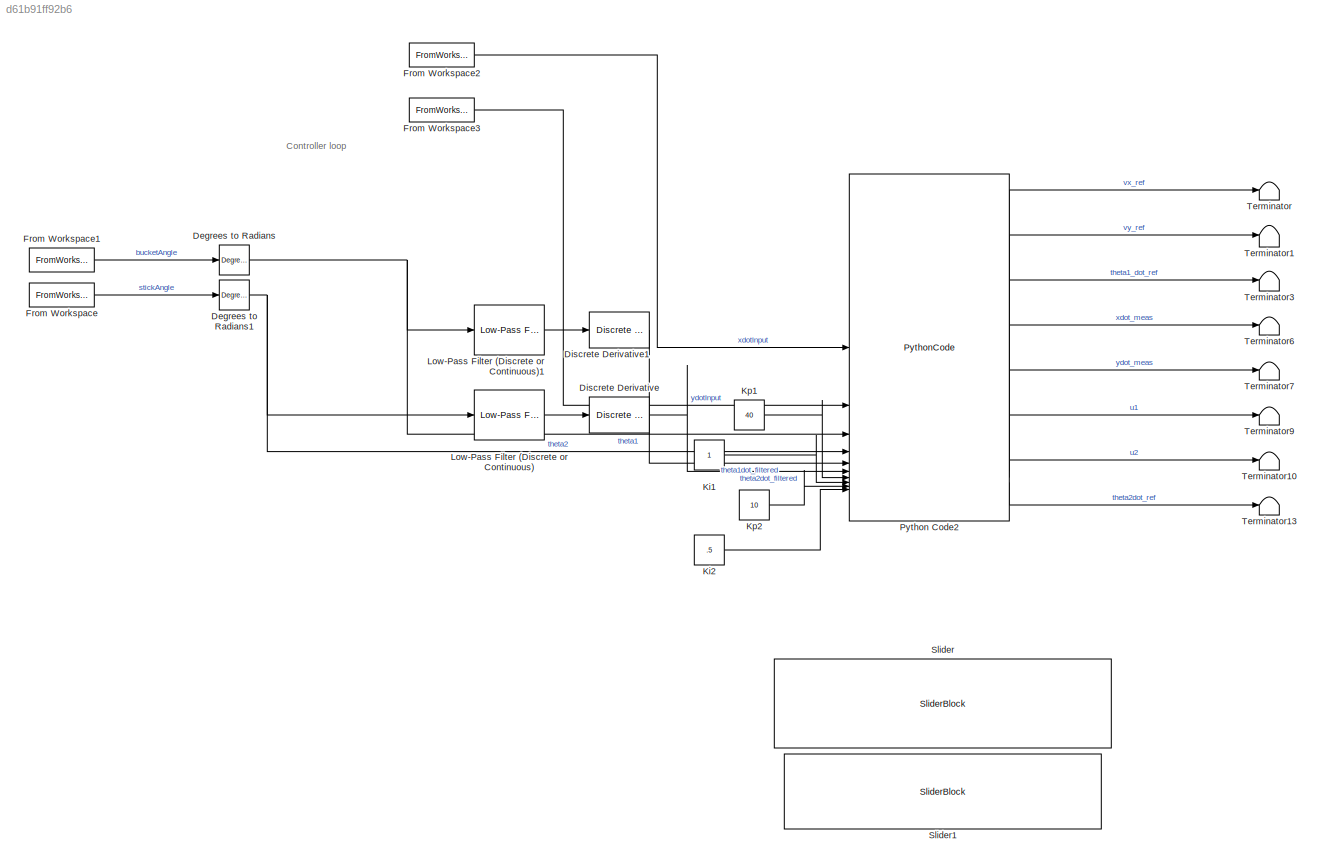
MODEL slx_d61b91ff92b6
KIND model
CONFIG AbsTol = auto
CONFIG EnableMultiTasking = off
CONFIG FixedStep = auto
CONFIG MaxStep = auto
CONFIG MinStep = auto
CONFIG RelTol = 1e-3
CONFIG SampleTimeConstraint = Unconstrained
CONFIG SolverName = VariableStepAuto
CONFIG StartTime = 0.0
CONFIG StopTime = 1600
BLOCK [Reference] Degrees to Radians  REF=simulink_extras/Transformations/Degrees to
Radians
  SourceBlock = simulink_extras/Transformations/Degrees to\nRadians
  SourceType = DegreesToRadians
BLOCK [Reference] Degrees to Radians1  REF=simulink_extras/Transformations/Degrees to
Radians
  SourceBlock = simulink_extras/Transformations/Degrees to\nRadians
  SourceType = DegreesToRadians
BLOCK [Reference] Discrete Derivative  REF=simulink/Discrete/Discrete Derivative
  SourceBlock = simulink/Discrete/Discrete Derivative
  SourceType = Discrete Derivative
BLOCK [Reference] Discrete Derivative1  REF=simulink/Discrete/Discrete Derivative
  SourceBlock = simulink/Discrete/Discrete Derivative
  SourceType = Discrete Derivative
BLOCK [FromWorkspace] From Workspace
  VariableName = data{2}.Values
BLOCK [FromWorkspace] From Workspace1
  VariableName = data{3}.Values
BLOCK [FromWorkspace] From Workspace2
  VariableName = data{6}.Values
BLOCK [FromWorkspace] From Workspace3
  VariableName = data{7}.Values
BLOCK [Constant] Ki1
BLOCK [Constant] Ki2
  Value = .5
BLOCK [Constant] Kp1
  Value = 40
BLOCK [Constant] Kp2
  Value = 10
BLOCK [Reference] Low-Pass Filter (Discrete or Continuous)  REF=eeGeneralControl/Low-Pass Filter
(Discrete or Continuous)
  LibrarySourceBlock = ee_sl_lib/General Control/Low-Pass Filter\n(Discrete or Continuous)
  SourceBlock = eeGeneralControl/Low-Pass Filter\n(Discrete or Continuous)
  SourceType = Low-Pass Filter (Discrete or Continuous)
BLOCK [Reference] Low-Pass Filter (Discrete or Continuous)1  REF=eeGeneralControl/Low-Pass Filter
(Discrete or Continuous)
  LibrarySourceBlock = ee_sl_lib/General Control/Low-Pass Filter\n(Discrete or Continuous)
  SourceBlock = eeGeneralControl/Low-Pass Filter\n(Discrete or Continuous)
  SourceType = Low-Pass Filter (Discrete or Continuous)
BLOCK [PythonCode] Python Code2
  OutputCode = import numpy as np\n\n# Inputs:\n#   xdot_ref, ydot_ref in [-1, 1]   (joystick commands, normalized)\n#   theta1, theta2 [rad]            (joint angles)\n#   max_joint_vel1, max_joint_vel2  [rad/s]\n#\n# Outputs:\n#   u1, u2 in [-100, 100]           (valve commands)\n\n\n# -------------------------------------------------------------------\n# Constants\n# -------------------------------------------------------...<+5475ch>
  SampleTime = .1
  max_joint_vel1 = .5
  max_joint_vel2 = .5
BLOCK [SliderBlock] Slider
  ScaleMax = 20
BLOCK [SliderBlock] Slider1
  ScaleMax = 1
BLOCK [Terminator] Terminator
BLOCK [Terminator] Terminator1
BLOCK [Terminator] Terminator10
BLOCK [Terminator] Terminator13
BLOCK [Terminator] Terminator3
BLOCK [Terminator] Terminator6
BLOCK [Terminator] Terminator7
BLOCK [Terminator] Terminator9
ANNOTATION (root): Controller loop
NET Degrees to Radians1:1 -> Low-Pass Filter (Discrete or Continuous):1, Python Code2:4
NET Degrees to Radians:1 -> Low-Pass Filter (Discrete or Continuous)1:1, Python Code2:3
LINE Discrete Derivative1:1 -> Python Code2:5
LINE Discrete Derivative:1 -> Python Code2:6
LINE From Workspace1:1 -> Degrees to Radians:1
LINE From Workspace2:1 -> Python Code2:1
LINE From Workspace3:1 -> Python Code2:2
LINE From Workspace:1 -> Degrees to Radians1:1
LINE Ki1:1 -> Python Code2:8
LINE Ki2:1 -> Python Code2:10
LINE Kp1:1 -> Python Code2:7
LINE Kp2:1 -> Python Code2:9
LINE Low-Pass Filter (Discrete or Continuous)1:1 -> Discrete Derivative1:1
LINE Low-Pass Filter (Discrete or Continuous):1 -> Discrete Derivative:1
LINE Python Code2:1 -> Terminator:1
LINE Python Code2:2 -> Terminator1:1
LINE Python Code2:3 -> Terminator3:1
LINE Python Code2:4 -> Terminator6:1
LINE Python Code2:5 -> Terminator7:1
LINE Python Code2:6 -> Terminator9:1
LINE Python Code2:7 -> Terminator10:1
LINE Python Code2:8 -> Terminator13:1
note: NET lines group one-source signal fan-out (src -> all destinations, sorted); 1:1 wires keep LINE
